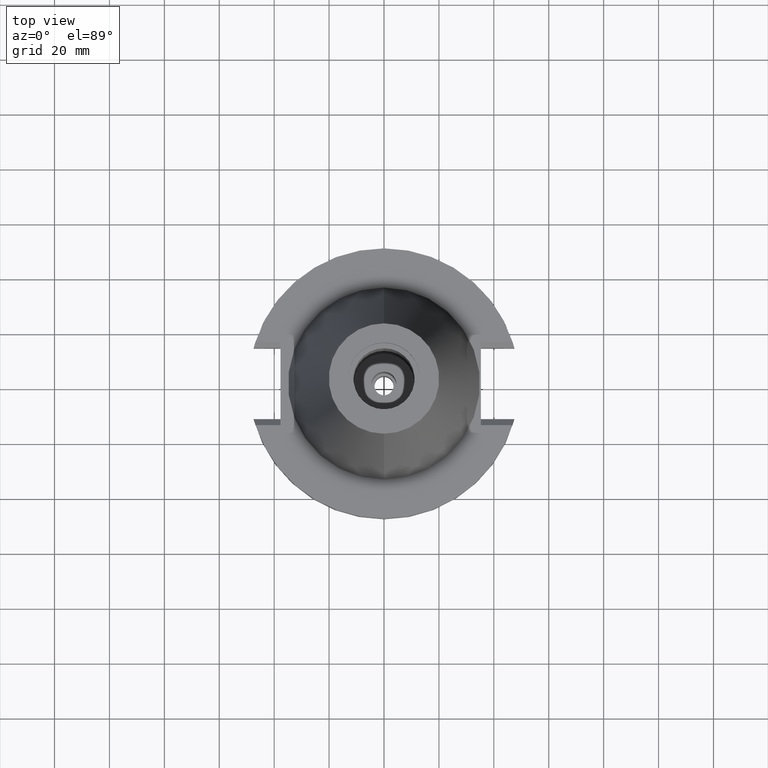
[diagram: clean part render]
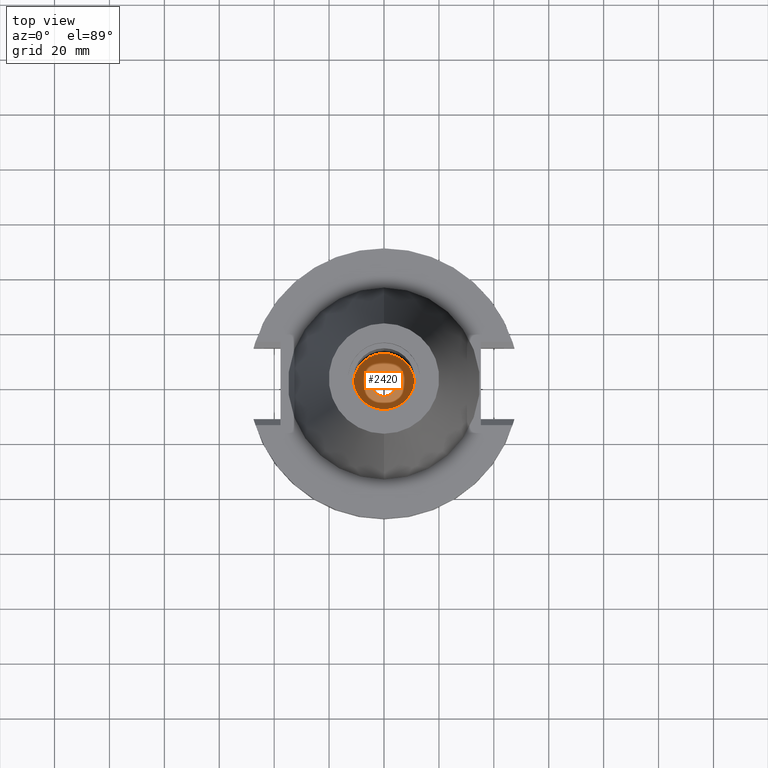
[diagram: same view with one face highlighted and labeled with its STEP entity id]
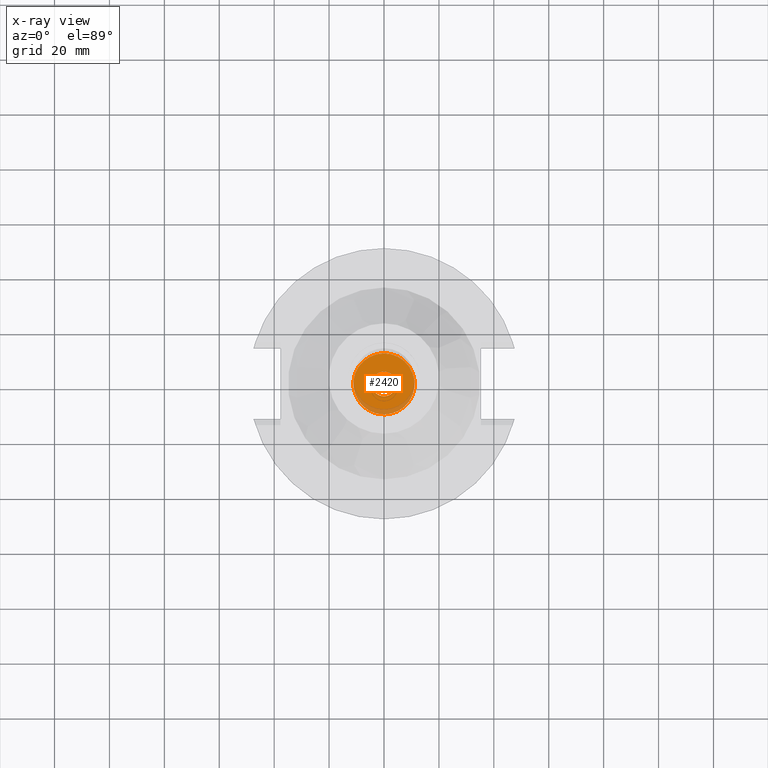
[diagram: x-ray of the same camera — body ghosted, the highlighted face saturated]
A machine part, top view. The second image highlights one B-rep face of the part: STEP entity #2420.
The next image is the same camera in x-ray: the body ghosted, the highlighted face saturated — about 13% of this face is hidden behind the body in this view.
In plain terms, the highlighted planar face has unit normal (0, 0, 1).
Its self-contained STEP definition (entity closure, byte-faithful):
#1134=CARTESIAN_POINT('',(0.E0,0.E0,-1.24E1));
#1135=DIRECTION('',(0.E0,0.E0,-1.E0));
#1136=DIRECTION('',(0.E0,-1.E0,0.E0));
#1137=AXIS2_PLACEMENT_3D('',#1134,#1135,#1136);
#1142=CARTESIAN_POINT('',(0.E0,0.E0,-1.24E1));
#1143=DIRECTION('',(0.E0,0.E0,-1.E0));
#1144=DIRECTION('',(0.E0,1.E0,0.E0));
#1145=AXIS2_PLACEMENT_3D('',#1142,#1143,#1144);
#1150=CARTESIAN_POINT('',(0.E0,0.E0,-1.24E1));
#1151=DIRECTION('',(0.E0,0.E0,1.E0));
#1152=DIRECTION('',(0.E0,-1.E0,0.E0));
#1153=AXIS2_PLACEMENT_3D('',#1150,#1151,#1152);
#1158=CARTESIAN_POINT('',(0.E0,0.E0,-1.24E1));
#1159=DIRECTION('',(0.E0,0.E0,1.E0));
#1160=DIRECTION('',(0.E0,1.E0,0.E0));
#1161=AXIS2_PLACEMENT_3D('',#1158,#1159,#1160);
#1396=CARTESIAN_POINT('',(0.E0,4.5E0,-1.24E1));
#1397=VERTEX_POINT('',#1396);
#1398=CARTESIAN_POINT('',(0.E0,-4.5E0,-1.24E1));
#1399=VERTEX_POINT('',#1398);
#1400=CARTESIAN_POINT('',(0.E0,-1.115E1,-1.24E1));
#1401=CARTESIAN_POINT('',(0.E0,1.115E1,-1.24E1));
#1402=VERTEX_POINT('',#1400);
#1403=VERTEX_POINT('',#1401);
#2405=CARTESIAN_POINT('',(0.E0,0.E0,-1.24E1));
#2406=DIRECTION('',(0.E0,0.E0,1.E0));
#2407=DIRECTION('',(0.E0,1.E0,0.E0));
#2408=AXIS2_PLACEMENT_3D('',#2405,#2406,#2407);
#2409=PLANE('',#2408);
#2411=ORIENTED_EDGE('',*,*,#2410,.T.);
#2413=ORIENTED_EDGE('',*,*,#2412,.T.);
#2414=EDGE_LOOP('',(#2411,#2413));
#2415=FACE_OUTER_BOUND('',#2414,.F.);
#2416=ORIENTED_EDGE('',*,*,#2398,.T.);
#2417=ORIENTED_EDGE('',*,*,#2387,.T.);
#2418=EDGE_LOOP('',(#2416,#2417));
#2419=FACE_BOUND('',#2418,.F.);
#1138=CIRCLE('',#1137,1.115E1);
#1146=CIRCLE('',#1145,1.115E1);
#1154=CIRCLE('',#1153,4.5E0);
#1162=CIRCLE('',#1161,4.5E0);
#2387=EDGE_CURVE('',#1397,#1399,#1162,.T.);
#2398=EDGE_CURVE('',#1399,#1397,#1154,.T.);
#2410=EDGE_CURVE('',#1402,#1403,#1138,.T.);
#2412=EDGE_CURVE('',#1403,#1402,#1146,.T.);
#2420=ADVANCED_FACE('',(#2415,#2419),#2409,.T.);